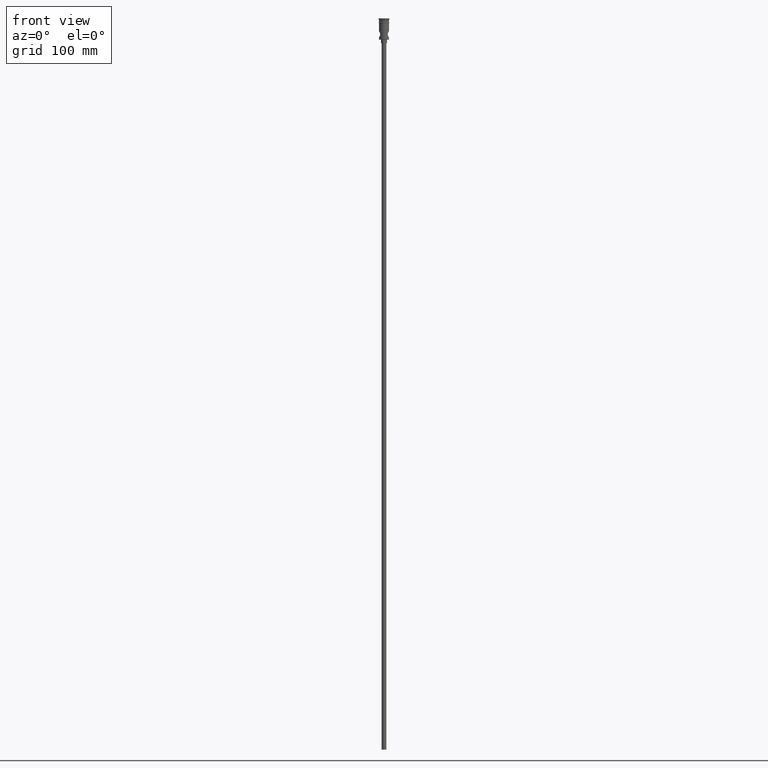
[diagram: clean part render]
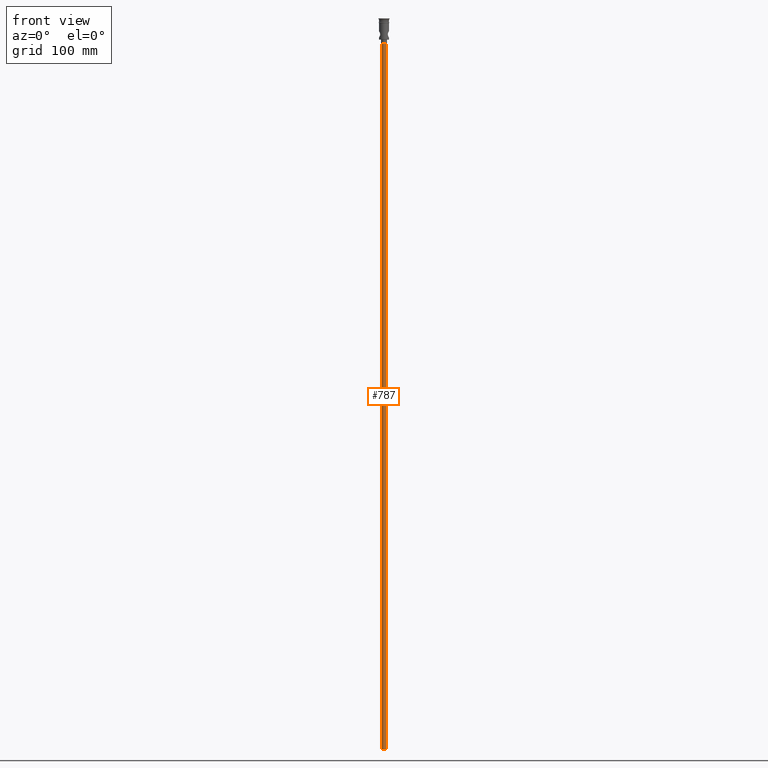
[diagram: same view with one face highlighted and labeled with its STEP entity id]
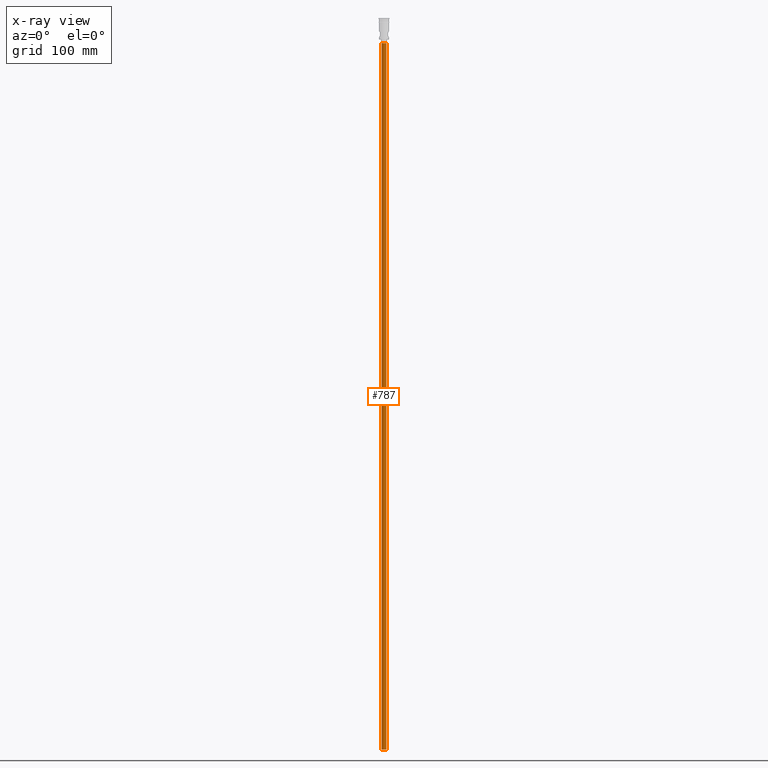
[diagram: x-ray of the same camera — body ghosted, the highlighted face saturated]
A machine part, front view. The second image highlights one B-rep face of the part: STEP entity #787.
The next image is the same camera in x-ray: the body ghosted, the highlighted face saturated — about 0% of this face is hidden behind the body in this view.
In plain terms, the highlighted cylindrical surface (edge-blend (fillet) strip) has radius 2 mm, axis along (-0, -0, 1).
Its self-contained STEP definition (entity closure, byte-faithful):
#18 = CARTESIAN_POINT ( 'NONE',  ( 2.000000000000000000, 0.000000000000000000, -618.0000000000000000 ) ) ;
#24 = ORIENTED_EDGE ( 'NONE', *, *, #420, .F. ) ;
#114 = CARTESIAN_POINT ( 'NONE',  ( -2.000000000000000000, 2.449293598294706414E-16, -618.0000000000000000 ) ) ;
#128 = LINE ( 'NONE', #18, #237 ) ;
#193 = AXIS2_PLACEMENT_3D ( 'NONE', #1320, #346, #550 ) ;
#235 = CARTESIAN_POINT ( 'NONE',  ( -2.000000000000000000, 2.449293598294706414E-16, -618.0000000000000000 ) ) ;
#237 = VECTOR ( 'NONE', #662, 1000.000000000000000 ) ;
#346 = DIRECTION ( 'NONE',  ( 0.000000000000000000, 0.000000000000000000, -1.000000000000000000 ) ) ;
#354 = EDGE_CURVE ( 'NONE', #723, #1375, #966, .T. ) ;
#420 = EDGE_CURVE ( 'NONE', #1085, #723, #896, .T. ) ;
#482 = AXIS2_PLACEMENT_3D ( 'NONE', #693, #1178, #1325 ) ;
#499 = VERTEX_POINT ( 'NONE', #1114 ) ;
#550 = DIRECTION ( 'NONE',  ( -1.000000000000000000, 0.000000000000000000, 0.000000000000000000 ) ) ;
#614 = VECTOR ( 'NONE', #1379, 1000.000000000000000 ) ;
#633 = ORIENTED_EDGE ( 'NONE', *, *, #814, .T. ) ;
#657 = CIRCLE ( 'NONE', #193, 2.000000000000000000 ) ;
#662 = DIRECTION ( 'NONE',  ( -0.000000000000000000, -0.000000000000000000, 1.000000000000000000 ) ) ;
#693 = CARTESIAN_POINT ( 'NONE',  ( 0.000000000000000000, 0.000000000000000000, -618.0000000000000000 ) ) ;
#723 = VERTEX_POINT ( 'NONE', #235 ) ;
#755 = DIRECTION ( 'NONE',  ( 1.000000000000000000, 0.000000000000000000, 0.000000000000000000 ) ) ;
#787 = ADVANCED_FACE ( 'NONE', ( #1407 ), #1056, .T. ) ;
#814 = EDGE_CURVE ( 'NONE', #499, #1375, #657, .T. ) ;
#826 = AXIS2_PLACEMENT_3D ( 'NONE', #881, #1324, #755 ) ;
#881 = CARTESIAN_POINT ( 'NONE',  ( 0.000000000000000000, 0.000000000000000000, -618.0000000000000000 ) ) ;
#896 = CIRCLE ( 'NONE', #482, 2.000000000000000000 ) ;
#909 = EDGE_LOOP ( 'NONE', ( #1350, #24, #1115, #633 ) ) ;
#938 = EDGE_CURVE ( 'NONE', #1085, #499, #128, .T. ) ;
#966 = LINE ( 'NONE', #114, #614 ) ;
#1056 = CYLINDRICAL_SURFACE ( 'NONE', #826, 2.000000000000000000 ) ;
#1085 = VERTEX_POINT ( 'NONE', #1414 ) ;
#1114 = CARTESIAN_POINT ( 'NONE',  ( 2.000000000000000000, 0.000000000000000000, -20.99999999999999645 ) ) ;
#1115 = ORIENTED_EDGE ( 'NONE', *, *, #938, .T. ) ;
#1178 = DIRECTION ( 'NONE',  ( 0.000000000000000000, 0.000000000000000000, -1.000000000000000000 ) ) ;
#1239 = CARTESIAN_POINT ( 'NONE',  ( -2.000000000000000000, 2.449293598294706414E-16, -20.99999999999999645 ) ) ;
#1320 = CARTESIAN_POINT ( 'NONE',  ( 0.000000000000000000, 0.000000000000000000, -20.99999999999999645 ) ) ;
#1324 = DIRECTION ( 'NONE',  ( -0.000000000000000000, -0.000000000000000000, 1.000000000000000000 ) ) ;
#1325 = DIRECTION ( 'NONE',  ( -1.000000000000000000, 0.000000000000000000, 0.000000000000000000 ) ) ;
#1350 = ORIENTED_EDGE ( 'NONE', *, *, #354, .F. ) ;
#1375 = VERTEX_POINT ( 'NONE', #1239 ) ;
#1379 = DIRECTION ( 'NONE',  ( -0.000000000000000000, -0.000000000000000000, 1.000000000000000000 ) ) ;
#1407 = FACE_OUTER_BOUND ( 'NONE', #909, .T. ) ;
#1414 = CARTESIAN_POINT ( 'NONE',  ( 2.000000000000000000, 0.000000000000000000, -618.0000000000000000 ) ) ;